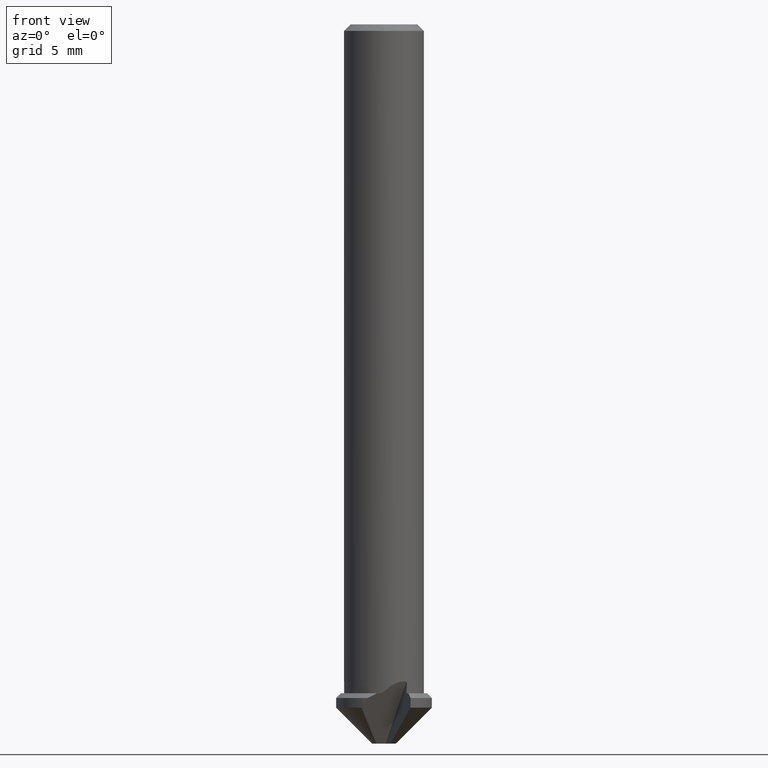
[diagram: clean part render]
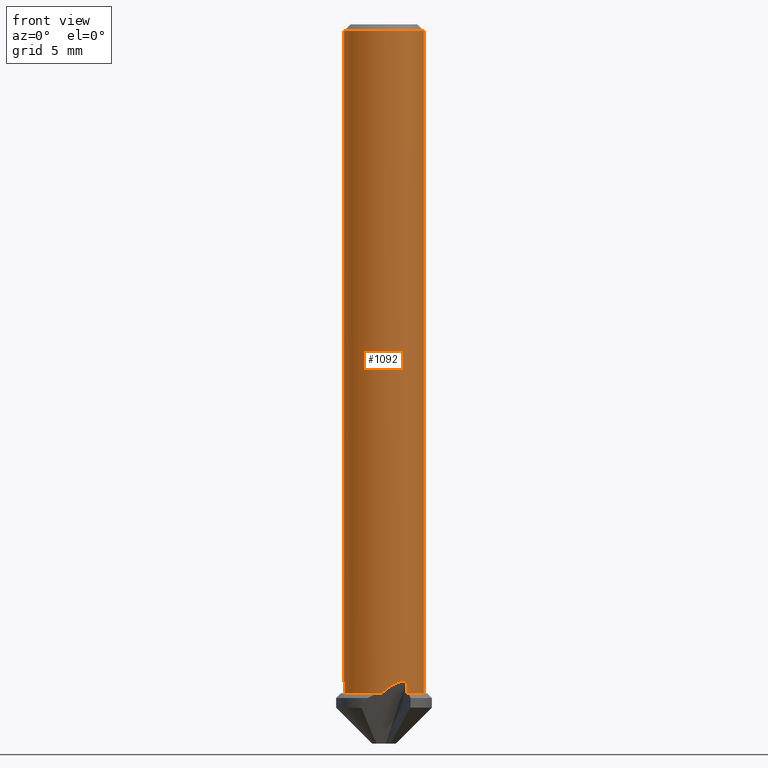
[diagram: same view with one face highlighted and labeled with its STEP entity id]
A machine part, front view. The second image highlights one B-rep face of the part: STEP entity #1092.
In plain terms, the highlighted cylindrical surface (partial cylindrical patch) has radius 2.5 mm, axis along (-0, -0, 1).
Its self-contained STEP definition (entity closure, byte-faithful):
#488=EDGE_CURVE('',#596,#982,#1356,.T.);
#492=VERTEX_POINT('',#1361);
#512=VERTEX_POINT('',#1383);
#520=EDGE_CURVE('',#588,#1190,#1391,.T.);
#532=EDGE_CURVE('',#762,#1296,#1406,.T.);
#542=VERTEX_POINT('',#1417);
#588=VERTEX_POINT('',#1470);
#590=VERTEX_POINT('',#1472);
#596=VERTEX_POINT('',#1478);
#656=EDGE_CURVE('',#812,#762,#1541,.T.);
#660=EDGE_CURVE('',#542,#590,#1545,.T.);
#708=EDGE_CURVE('',#542,#512,#1602,.T.);
#762=VERTEX_POINT('',#1662);
#812=VERTEX_POINT('',#1716);
#912=EDGE_CURVE('',#1298,#812,#1822,.T.);
#982=VERTEX_POINT('',#1898);
#1018=EDGE_CURVE('',#982,#512,#1935,.T.);
#1020=EDGE_CURVE('',#588,#596,#1937,.T.);
#1092=ADVANCED_FACE('',(#2017),#2018,.T.);
#1124=EDGE_CURVE('',#1296,#492,#2050,.T.);
#1170=EDGE_CURVE('',#590,#1298,#2102,.T.);
#1190=VERTEX_POINT('',#2125);
#1192=EDGE_CURVE('',#492,#1190,#2127,.T.);
#1296=VERTEX_POINT('',#2236);
#1298=VERTEX_POINT('',#2238);
#1356=B_SPLINE_CURVE_WITH_KNOTS('',3,(#2323,#2324,#2325,#2326,#2327,#2328,#2329,#2330,#2331,#2332,#2333,#2334,#2335,#2336),.UNSPECIFIED.,.F.,.F.,(4,2,2,2,2,2,4),(0.184157600930735,0.192742132728683,0.20659826256085,0.234310522225183,0.293125424812681,0.351940327400179,0.362202442003432),.UNSPECIFIED.);
#1361=CARTESIAN_POINT('',(-2.49051059576092,-0.21761657198517,-41.271066367513));
#1383=CARTESIAN_POINT('',(1.41708875659995,-2.05957749451629,-41.85));
#1391=CIRCLE('',#2424,2.5);
#1406=ELLIPSE('',#2442,5.00306602403646,2.5);
#1417=CARTESIAN_POINT('',(2.5,3.06151588455594E-016,-41.85));
#1470=CARTESIAN_POINT('',(-0.13719324841677,-2.49623276410451,-41.85));
#1472=CARTESIAN_POINT('',(2.5,3.06151588455594E-016,-0.399999999999999));
#1478=CARTESIAN_POINT('',(1.37614486239431,-2.08715723358489,-41.1139234402125));
#1541=LINE('',#2775,#2776);
#1545=LINE('',#2808,#2809);
#1602=CIRCLE('',#2906,2.5);
#1662=CARTESIAN_POINT('',(-2.5,-2.476560133496E-016,-41.1100794319298));
#1716=CARTESIAN_POINT('',(-2.5,-3.06151588455594E-016,-0.399999999999999));
#1822=CIRCLE('',#3439,2.5);
#1898=CARTESIAN_POINT('',(1.43371677750411,-2.04803715833069,-41.271066367513));
#1935=ELLIPSE('',#3613,71.6342708696101,2.5);
#1937=ELLIPSE('',#3616,5.00306602403646,2.5);
#2017=FACE_OUTER_BOUND('',#3749,.T.);
#2018=CYLINDRICAL_SURFACE('',#3750,2.5);
#2050=B_SPLINE_CURVE_WITH_KNOTS('',3,(#3805,#3806,#3807,#3808,#3809,#3810,#3811,#3812,#3813,#3814,#3815,#3816,#3817,#3818,#3819,#3820,#3821,#3822,#3823,#3824,#3825,#3826,#3827,#3828,#3829,#3830,#3831,#3832,#3833,#3834,#3835,#3836),.UNSPECIFIED.,.F.,.F.,(4,2,2,2,2,2,2,2,2,2,2,2,2,2,2,4),(0.10526679636059,0.149848446933178,0.163136407059756,0.176424367186334,0.189425219866795,0.202426072547257,0.24404080675724,0.346817540624238,0.405897531316165,0.464977522008091,0.493727498229415,0.508102486340077,0.522477474450739,0.536204889528116,0.549932304605493,0.577387134760247),.UNSPECIFIED.);
#2102=CIRCLE('',#3947,2.5);
#2125=CARTESIAN_POINT('',(-2.49219080961379,-0.197446115374709,-41.85));
#2127=ELLIPSE('',#3976,71.6342708696101,2.5);
#2236=CARTESIAN_POINT('',(-2.49560361717412,-0.148197793328459,-41.1139234402125));
#2238=CARTESIAN_POINT('',(3.06151588455594E-016,-2.5,-0.399999999999999));
#2323=CARTESIAN_POINT('',(1.37614486239431,-2.08715723358489,-41.1139234402125));
#2324=CARTESIAN_POINT('',(1.37850030541525,-2.08560419734988,-41.1141415635389));
#2325=CARTESIAN_POINT('',(1.38082112861148,-2.0840682136214,-41.1146868102748));
#2326=CARTESIAN_POINT('',(1.38672655853296,-2.08014631371561,-41.1168822783324));
#2327=CARTESIAN_POINT('',(1.39021130795412,-2.07781801819718,-41.1190137653241));
#2328=CARTESIAN_POINT('',(1.39992110242683,-2.07129951783909,-41.1270811254951));
#2329=CARTESIAN_POINT('',(1.40540706748002,-2.06757283140281,-41.1347420055017));
#2330=CARTESIAN_POINT('',(1.41866604792631,-2.05852027735401,-41.1587030992715));
#2331=CARTESIAN_POINT('',(1.42456705640064,-2.05441733456814,-41.1784935888278));
#2332=CARTESIAN_POINT('',(1.43224530725354,-2.04907180503887,-41.2196343927208));
#2333=CARTESIAN_POINT('',(1.43386608256856,-2.04793263005879,-41.2410271209171));
#2334=CARTESIAN_POINT('',(1.43386608256856,-2.04793263005879,-41.264052793314));
#2335=CARTESIAN_POINT('',(1.43381790421655,-2.04796636515016,-41.2675362337877));
#2336=CARTESIAN_POINT('',(1.43371677750411,-2.04803715833069,-41.271066367513));
#2424=AXIS2_PLACEMENT_3D('',#4305,#4306,#4307);
#2442=AXIS2_PLACEMENT_3D('',#4341,#4342,#4343);
#2775=CARTESIAN_POINT('',(-2.5,-3.06151588455594E-016,-40.925));
#2776=VECTOR('',#4466,1.0);
#2808=CARTESIAN_POINT('',(2.5,3.06151588455594E-016,-40.925));
#2809=VECTOR('',#4467,1.0);
#2906=AXIS2_PLACEMENT_3D('',#4567,#4568,#4569);
#3439=AXIS2_PLACEMENT_3D('',#4776,#4777,#4778);
#3613=AXIS2_PLACEMENT_3D('',#4891,#4892,#4893);
#3616=AXIS2_PLACEMENT_3D('',#4894,#4895,#4896);
#3749=EDGE_LOOP('',(#5005,#5006,#5007,#5008,#5009,#5010,#5011,#5012,#5013,#5014,#5015,#5016));
#3750=AXIS2_PLACEMENT_3D('',#5017,#5018,#5019);
#3805=CARTESIAN_POINT('',(-2.49838179664397,-0.0899355224483645,-41.1622117300354));
#3806=CARTESIAN_POINT('',(-2.49815153081844,-0.0963322379088356,-41.1488003557232));
#3807=CARTESIAN_POINT('',(-2.49777643839955,-0.106055071233014,-41.1338561398297));
#3808=CARTESIAN_POINT('',(-2.49706714470833,-0.121110080545926,-41.1218169251271));
#3809=CARTESIAN_POINT('',(-2.49686761941061,-0.125184486597147,-41.1191767078453));
#3810=CARTESIAN_POINT('',(-2.49641511330507,-0.133905364928085,-41.1153495627207));
#3811=CARTESIAN_POINT('',(-2.4961611159631,-0.138561241303992,-41.1141842203717));
#3812=CARTESIAN_POINT('',(-2.49566104743293,-0.147290990010906,-41.1136093339465));
#3813=CARTESIAN_POINT('',(-2.49538131392577,-0.15195998930139,-41.1141309909483));
#3814=CARTESIAN_POINT('',(-2.49482542676131,-0.160828573790738,-41.1168578654616));
#3815=CARTESIAN_POINT('',(-2.49454937761884,-0.16503410632045,-41.1190437242373));
#3816=CARTESIAN_POINT('',(-2.49353358775265,-0.180060944883738,-41.1292707199678));
#3817=CARTESIAN_POINT('',(-2.49280506238175,-0.189637655602868,-41.1428663677687));
#3818=CARTESIAN_POINT('',(-2.4910958150393,-0.211382804086602,-41.1857705749852));
#3819=CARTESIAN_POINT('',(-2.49049472415427,-0.217798138099846,-41.2263731771573));
#3820=CARTESIAN_POINT('',(-2.49049472415427,-0.217798138099843,-41.2803254186769));
#3821=CARTESIAN_POINT('',(-2.49067267565873,-0.215804052657814,-41.3018178653678));
#3822=CARTESIAN_POINT('',(-2.49146383494243,-0.206470491969903,-41.3432497693991));
#3823=CARTESIAN_POINT('',(-2.49206936582275,-0.199252803465406,-41.3632167143965));
#3824=CARTESIAN_POINT('',(-2.49325390339751,-0.18360652047145,-41.3879333740522));
#3825=CARTESIAN_POINT('',(-2.49373551769797,-0.177041839615213,-41.3961217506384));
#3826=CARTESIAN_POINT('',(-2.49452644583357,-0.165387341514905,-41.4054193742128));
#3827=CARTESIAN_POINT('',(-2.49480114386018,-0.161204279479741,-41.4080299856761));
#3828=CARTESIAN_POINT('',(-2.49535541256372,-0.152383893868073,-41.4118357937317));
#3829=CARTESIAN_POINT('',(-2.49563490848592,-0.147747300346522,-41.4130326929691));
#3830=CARTESIAN_POINT('',(-2.49616947532086,-0.138415311120053,-41.4136472391728));
#3831=CARTESIAN_POINT('',(-2.49641732594316,-0.13386465043093,-41.4131246289423));
#3832=CARTESIAN_POINT('',(-2.49687227620477,-0.125092777343885,-41.4105787856303));
#3833=CARTESIAN_POINT('',(-2.49707940229521,-0.120871731663588,-41.4085549828736));
#3834=CARTESIAN_POINT('',(-2.49763214677711,-0.109067512851808,-41.4008177587705));
#3835=CARTESIAN_POINT('',(-2.49790996058979,-0.102337780315019,-41.3933781208381));
#3836=CARTESIAN_POINT('',(-2.4981125537683,-0.097127075037002,-41.3858575176012));
#3947=AXIS2_PLACEMENT_3D('',#5111,#5112,#5113);
#3976=AXIS2_PLACEMENT_3D('',#5159,#5160,#5161);
#4305=CARTESIAN_POINT('',(0.0,0.0,-41.85));
#4306=DIRECTION('',(0.0,0.0,-1.0));
#4307=DIRECTION('',(-1.0,0.0,0.0));
#4341=CARTESIAN_POINT('',(0.0,0.0,-45.4432782267687));
#4342=DIRECTION('',(0.866108656975691,0.0127324361655803,0.499693585491204));
#4343=DIRECTION('',(-0.49963959942913,-0.00734507068401933,0.866202240021893));
#4466=DIRECTION('',(0.0,0.0,-1.0));
#4467=DIRECTION('',(-0.0,-0.0,1.0));
#4567=CARTESIAN_POINT('',(0.0,0.0,-41.85));
#4568=DIRECTION('',(0.0,0.0,-1.0));
#4569=DIRECTION('',(-1.0,0.0,0.0));
#4776=CARTESIAN_POINT('',(0.0,0.0,-0.399999999999999));
#4777=DIRECTION('',(0.0,0.0,-1.0));
#4778=DIRECTION('',(0.0,1.0,0.0));
#4891=CARTESIAN_POINT('',(0.0,0.0,-45.01));
#4892=DIRECTION('',(0.84753148816974,0.529596451735374,-0.0348994967025007));
#4893=DIRECTION('',(-0.0295964517353732,-0.0184939156146983,-0.999390827019096));
#4894=CARTESIAN_POINT('',(0.0,0.0,-45.4432782267687));
#4895=DIRECTION('',(-0.444080941659302,0.74370588129578,0.499693585491204));
#4896=DIRECTION('',(-0.256180817519519,0.429028050500298,-0.866202240021893));
#5005=ORIENTED_EDGE('',*,*,#656,.T.);
#5006=ORIENTED_EDGE('',*,*,#532,.T.);
#5007=ORIENTED_EDGE('',*,*,#1124,.T.);
#5008=ORIENTED_EDGE('',*,*,#1192,.T.);
#5009=ORIENTED_EDGE('',*,*,#520,.F.);
#5010=ORIENTED_EDGE('',*,*,#1020,.T.);
#5011=ORIENTED_EDGE('',*,*,#488,.T.);
#5012=ORIENTED_EDGE('',*,*,#1018,.T.);
#5013=ORIENTED_EDGE('',*,*,#708,.F.);
#5014=ORIENTED_EDGE('',*,*,#660,.T.);
#5015=ORIENTED_EDGE('',*,*,#1170,.T.);
#5016=ORIENTED_EDGE('',*,*,#912,.T.);
#5017=CARTESIAN_POINT('',(0.0,0.0,-40.925));
#5018=DIRECTION('',(-0.0,-0.0,1.0));
#5019=DIRECTION('',(-1.0,0.0,0.0));
#5111=CARTESIAN_POINT('',(0.0,0.0,-0.399999999999999));
#5112=DIRECTION('',(0.0,0.0,-1.0));
#5113=DIRECTION('',(0.0,1.0,0.0));
#5159=CARTESIAN_POINT('',(0.0,0.0,-45.0099999999999));
#5160=DIRECTION('',(0.0348782368720624,-0.998782025129912,-0.0348994967025007));
#5161=DIRECTION('',(-0.00121797487008785,0.0348782368720624,-0.999390827019096));